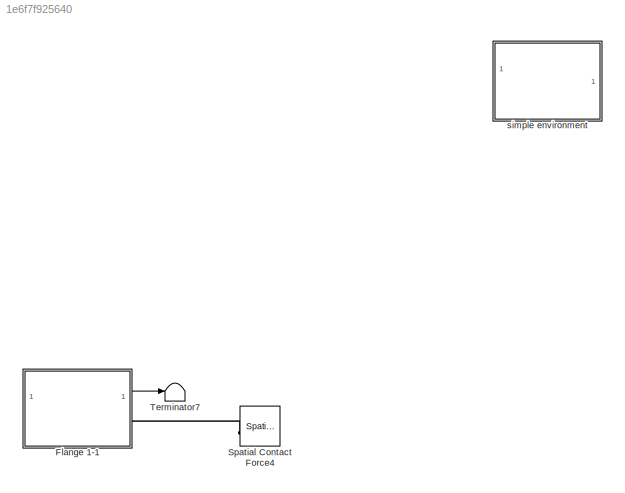
MODEL slx_1e6f7f925640
KIND model
CONFIG AbsTol = auto
CONFIG EnableMultiTasking = off
CONFIG FixedStep = auto
CONFIG MaxStep = auto
CONFIG MinStep = auto
CONFIG RelTol = 1e-3
CONFIG SampleTimeConstraint = Unconstrained
CONFIG SolverName = VariableStepAuto
CONFIG StartTime = 0.0
CONFIG StopTime = 10.0
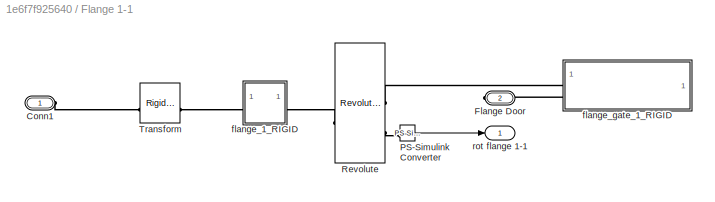
BLOCK [SubSystem] Flange 1-1
  MinAlgLoopOccurrences = on
  NameLocation = top
BLOCK [PMIOPort] Flange 1-1/Conn1
  Side = Left
BLOCK [PMIOPort] Flange 1-1/Flange Door
  Port = 2
  Side = Right
BLOCK [Reference] Flange 1-1/PS-Simulink Converter  REF=nesl_utility/PS-Simulink
Converter
  SourceBlock = nesl_utility/PS-Simulink\nConverter
  SourceType = PS-Simulink\nConverter
BLOCK [Reference] Flange 1-1/Revolute  REF=sm_lib/Joints/Revolute Joint
  SourceBlock = sm_lib/Joints/Revolute Joint
  SourceType = Revolute Joint
BLOCK [Reference] Flange 1-1/Transform  REF=sm_lib/Frames and
Transforms/Rigid
Transform
  SourceBlock = sm_lib/Frames and\nTransforms/Rigid\nTransform
  SourceType = Rigid\nTransform
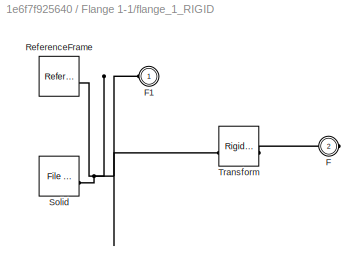
BLOCK [SubSystem] Flange 1-1/flange_1_RIGID
BLOCK [PMIOPort] Flange 1-1/flange_1_RIGID/F
  Port = 2
  Side = Right
BLOCK [PMIOPort] Flange 1-1/flange_1_RIGID/F1
  Side = Left
BLOCK [Reference] Flange 1-1/flange_1_RIGID/ReferenceFrame  REF=sm_lib/Frames and
Transforms/Reference
Frame
  SourceBlock = sm_lib/Frames and\nTransforms/Reference\nFrame
  SourceType = Reference\nFrame
BLOCK [Reference] Flange 1-1/flange_1_RIGID/Solid  REF=sm_lib/Body Elements/File Solid
  SourceBlock = sm_lib/Body Elements/File Solid
  SourceType = File Solid
BLOCK [Reference] Flange 1-1/flange_1_RIGID/Transform  REF=sm_lib/Frames and
Transforms/Rigid
Transform
  SourceBlock = sm_lib/Frames and\nTransforms/Rigid\nTransform
  SourceType = Rigid\nTransform
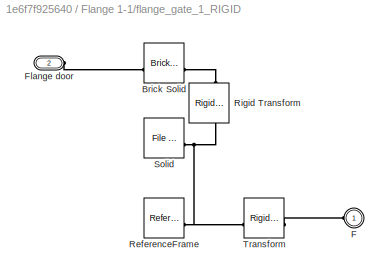
BLOCK [SubSystem] Flange 1-1/flange_gate_1_RIGID
BLOCK [Reference] Flange 1-1/flange_gate_1_RIGID/Brick Solid  REF=sm_lib/Body Elements/Brick Solid
  SourceBlock = sm_lib/Body Elements/Brick Solid
  SourceType = Brick Solid
BLOCK [PMIOPort] Flange 1-1/flange_gate_1_RIGID/F
  Side = Left
BLOCK [PMIOPort] Flange 1-1/flange_gate_1_RIGID/Flange door
  Port = 2
  Side = Left
BLOCK [Reference] Flange 1-1/flange_gate_1_RIGID/ReferenceFrame  REF=sm_lib/Frames and
Transforms/Reference
Frame
  SourceBlock = sm_lib/Frames and\nTransforms/Reference\nFrame
  SourceType = Reference\nFrame
BLOCK [Reference] Flange 1-1/flange_gate_1_RIGID/Rigid Transform  REF=sm_lib/Frames and
Transforms/Rigid
Transform
  NameLocation = right
  SourceBlock = sm_lib/Frames and\nTransforms/Rigid\nTransform
  SourceType = Rigid\nTransform
BLOCK [Reference] Flange 1-1/flange_gate_1_RIGID/Solid  REF=sm_lib/Body Elements/File Solid
  SourceBlock = sm_lib/Body Elements/File Solid
  SourceType = File Solid
BLOCK [Reference] Flange 1-1/flange_gate_1_RIGID/Transform  REF=sm_lib/Frames and
Transforms/Rigid
Transform
  SourceBlock = sm_lib/Frames and\nTransforms/Rigid\nTransform
  SourceType = Rigid\nTransform
BLOCK [Outport] Flange 1-1/rot flange 1-1
BLOCK [Reference] Spatial Contact Force4  REF=sm_lib/Forces and
Torques/Spatial
Contact Force
  SourceBlock = sm_lib/Forces and\nTorques/Spatial\nContact Force
  SourceType = Spatial\nContact Force
BLOCK [Terminator] Terminator7
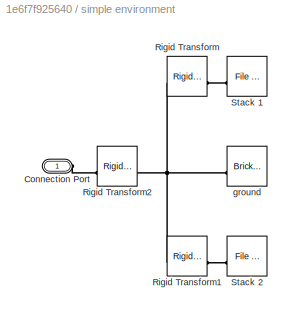
BLOCK [SubSystem] simple environment
BLOCK [PMIOPort] simple environment/Connection Port
  Side = Left
BLOCK [Reference] simple environment/Rigid Transform  REF=sm_lib/Frames and
Transforms/Rigid
Transform
  SourceBlock = sm_lib/Frames and\nTransforms/Rigid\nTransform
  SourceType = Rigid\nTransform
BLOCK [Reference] simple environment/Rigid Transform1  REF=sm_lib/Frames and
Transforms/Rigid
Transform
  SourceBlock = sm_lib/Frames and\nTransforms/Rigid\nTransform
  SourceType = Rigid\nTransform
BLOCK [Reference] simple environment/Rigid Transform2  REF=sm_lib/Frames and
Transforms/Rigid
Transform
  SourceBlock = sm_lib/Frames and\nTransforms/Rigid\nTransform
  SourceType = Rigid\nTransform
BLOCK [Reference] simple environment/Stack 1  REF=sm_lib/Body Elements/File Solid
  NameLocation = top
  SourceBlock = sm_lib/Body Elements/File Solid
  SourceType = File Solid
BLOCK [Reference] simple environment/Stack 2  REF=sm_lib/Body Elements/File Solid
  NameLocation = top
  SourceBlock = sm_lib/Body Elements/File Solid
  SourceType = File Solid
BLOCK [Reference] simple environment/ground  REF=sm_lib/Body Elements/Brick Solid
  NameLocation = top
  SourceBlock = sm_lib/Body Elements/Brick Solid
  SourceType = Brick Solid
LINE Flange 1-1/PS-Simulink Converter:1 -> Flange 1-1/rot flange 1-1:1
LINE Flange 1-1:1 -> Terminator7:1
PLINE Flange 1-1/Conn1:RConn1 -- Flange 1-1/Transform:LConn1
PLINE Flange 1-1/Flange Door:RConn1 -- Flange 1-1/flange_gate_1_RIGID:LConn2
PLINE Flange 1-1/PS-Simulink Converter:LConn1 -- Flange 1-1/Revolute:RConn2
PLINE Flange 1-1/Revolute:LConn1 -- Flange 1-1/flange_1_RIGID:RConn1
PLINE Flange 1-1/Revolute:RConn1 -- Flange 1-1/flange_gate_1_RIGID:LConn1
PLINE Flange 1-1/Transform:RConn1 -- Flange 1-1/flange_1_RIGID:LConn1
PNET net1: Flange 1-1/flange_1_RIGID/F1:RConn1 -- Flange 1-1/flange_1_RIGID/ReferenceFrame:RConn1 -- Flange 1-1/flange_1_RIGID/Solid:RConn1 -- Flange 1-1/flange_1_RIGID/Transform:LConn1
PLINE Flange 1-1/flange_1_RIGID/F:RConn1 -- Flange 1-1/flange_1_RIGID/Transform:RConn1
PLINE Flange 1-1/flange_gate_1_RIGID/Brick Solid:LConn1 -- Flange 1-1/flange_gate_1_RIGID/Flange door:RConn1
PLINE Flange 1-1/flange_gate_1_RIGID/Brick Solid:RConn1 -- Flange 1-1/flange_gate_1_RIGID/Rigid Transform:RConn1
PLINE Flange 1-1/flange_gate_1_RIGID/F:RConn1 -- Flange 1-1/flange_gate_1_RIGID/Transform:RConn1
PNET net2: Flange 1-1/flange_gate_1_RIGID/ReferenceFrame:RConn1 -- Flange 1-1/flange_gate_1_RIGID/Rigid Transform:LConn1 -- Flange 1-1/flange_gate_1_RIGID/Solid:RConn1 -- Flange 1-1/flange_gate_1_RIGID/Transform:LConn1
PLINE Flange 1-1:RConn1 -- Spatial Contact Force4:LConn1
PLINE simple environment/Connection Port:RConn1 -- simple environment/Rigid Transform2:LConn1
PNET net3: simple environment/Rigid Transform1:LConn1 -- simple environment/Rigid Transform2:RConn1 -- simple environment/Rigid Transform:LConn1 -- simple environment/ground:RConn1
PLINE simple environment/Rigid Transform1:RConn1 -- simple environment/Stack 2:RConn1
PLINE simple environment/Rigid Transform:RConn1 -- simple environment/Stack 1:RConn1
note: PNET lines group multi-terminal physical nets as a canonical sorted terminal list (undirected conserving connections); 2-terminal nets keep the pairwise PLINE form
